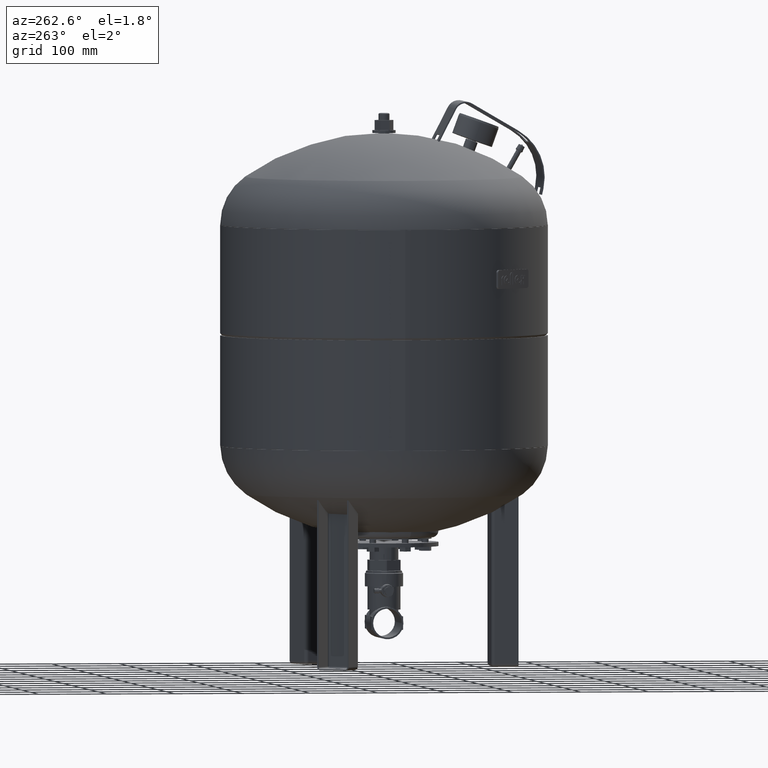
[diagram: clean part render]
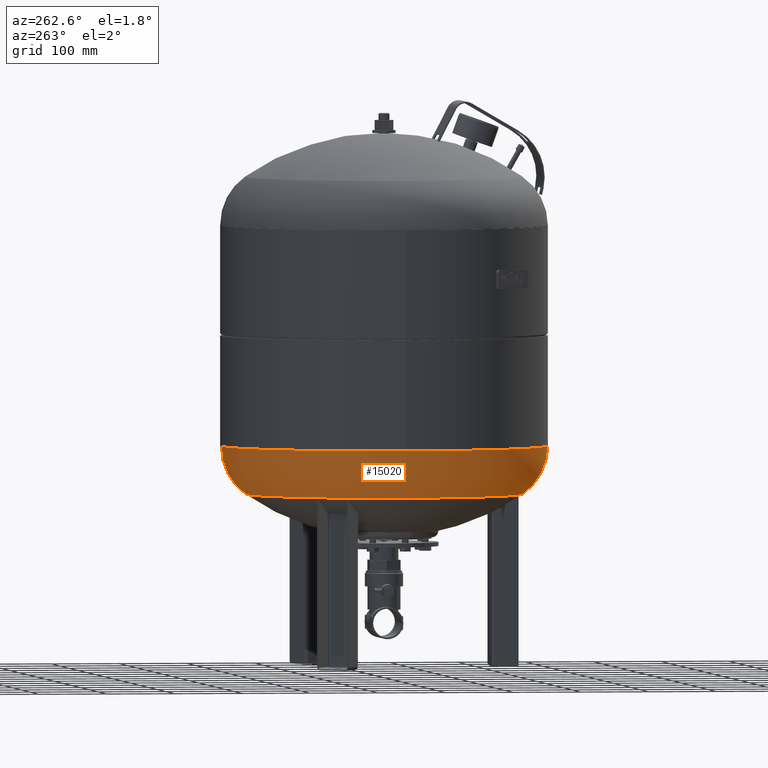
[diagram: same view with one face highlighted and labeled with its STEP entity id]
A machine part, auxiliary view. The second image highlights one B-rep face of the part: STEP entity #15020.
In plain terms, the highlighted toroidal blend (fillet) surface has major radius 154 mm and minor (blend) radius 86 mm.
Its self-contained STEP definition (entity closure, byte-faithful):
#14925=CARTESIAN_POINT('',(-240.0,8.193183E-017,323.553983896047730));
#14926=VERTEX_POINT('',#14925);
#14950=CARTESIAN_POINT('',(-3.818310E-014,240.0,323.553983896047840));
#14951=VERTEX_POINT('',#14950);
#14959=CARTESIAN_POINT('',(2.963866E-017,8.193183E-017,323.553983896047730));
#14960=DIRECTION('',(0.0,0.0,1.0));
#14961=DIRECTION('',(-1.0,0.0,0.0));
#14962=AXIS2_PLACEMENT_3D('',#14959,#14960,#14961);
#14963=CIRCLE('',#14962,240.0);
#14964=EDGE_CURVE('',#14951,#14926,#14963,.T.);
#14969=CARTESIAN_POINT('',(-8.792549E-015,8.193183E-017,323.553983896047840));
#14970=DIRECTION('',(-6.645200E-017,-1.836970E-016,1.0));
#14971=DIRECTION('',(0.0,-1.0,0.0));
#14972=AXIS2_PLACEMENT_3D('',#14969,#14970,#14971);
#14973=TOROIDAL_SURFACE('',#14972,153.999999999999970,86.0);
#14974=CARTESIAN_POINT('',(-8.792549E-015,-240.0,323.553983896047610));
#14975=VERTEX_POINT('',#14974);
#14976=CARTESIAN_POINT('',(-4.111121E-015,-203.325884543761560,253.105725479139470));
#14977=VERTEX_POINT('',#14976);
#14978=CARTESIAN_POINT('',(-8.792549E-015,-153.999999999999970,323.553983896047780));
#14979=DIRECTION('',(1.0,0.0,0.0));
#14980=DIRECTION('',(0.0,-1.0,0.0));
#14981=AXIS2_PLACEMENT_3D('',#14978,#14979,#14980);
#14982=CIRCLE('',#14981,86.0);
#14983=EDGE_CURVE('',#14975,#14977,#14982,.T.);
#14984=ORIENTED_EDGE('',*,*,#14983,.F.);
#14985=CARTESIAN_POINT('',(2.963866E-017,8.193183E-017,323.553983896047730));
#14986=DIRECTION('',(0.0,0.0,1.0));
#14987=DIRECTION('',(-1.0,0.0,0.0));
#14988=AXIS2_PLACEMENT_3D('',#14985,#14986,#14987);
#14989=CIRCLE('',#14988,240.0);
#14990=EDGE_CURVE('',#14926,#14975,#14989,.T.);
#14991=ORIENTED_EDGE('',*,*,#14990,.F.);
#14992=ORIENTED_EDGE('',*,*,#14964,.F.);
#14993=CARTESIAN_POINT('',(-2.901054E-014,203.325884543761560,253.105725479139550));
#14994=VERTEX_POINT('',#14993);
#14995=CARTESIAN_POINT('',(-2.765149E-014,153.999999999999970,323.553983896047900));
#14996=DIRECTION('',(-1.0,0.0,0.0));
#14997=DIRECTION('',(0.0,1.0,0.0));
#14998=AXIS2_PLACEMENT_3D('',#14995,#14996,#14997);
#14999=CIRCLE('',#14998,86.0);
#15000=EDGE_CURVE('',#14951,#14994,#14999,.T.);
#15001=ORIENTED_EDGE('',*,*,#15000,.T.);
#15002=CARTESIAN_POINT('',(-203.325884543761560,1.302307E-014,253.105725479139490));
#15003=VERTEX_POINT('',#15002);
#15004=CARTESIAN_POINT('',(4.711066E-015,1.302307E-014,253.105725479139520));
#15005=DIRECTION('',(0.0,0.0,1.0));
#15006=DIRECTION('',(-1.0,0.0,0.0));
#15007=AXIS2_PLACEMENT_3D('',#15004,#15005,#15006);
#15008=CIRCLE('',#15007,203.325884543761560);
#15009=EDGE_CURVE('',#14994,#15003,#15008,.T.);
#15010=ORIENTED_EDGE('',*,*,#15009,.T.);
#15011=CARTESIAN_POINT('',(4.711066E-015,1.302307E-014,253.105725479139520));
#15012=DIRECTION('',(0.0,0.0,1.0));
#15013=DIRECTION('',(-1.0,0.0,0.0));
#15014=AXIS2_PLACEMENT_3D('',#15011,#15012,#15013);
#15015=CIRCLE('',#15014,203.325884543761560);
#15016=EDGE_CURVE('',#15003,#14977,#15015,.T.);
#15017=ORIENTED_EDGE('',*,*,#15016,.T.);
#15018=EDGE_LOOP('',(#14984,#14991,#14992,#15001,#15010,#15017));
#15019=FACE_OUTER_BOUND('',#15018,.T.);
#15020=ADVANCED_FACE('',(#15019),#14973,.T.);